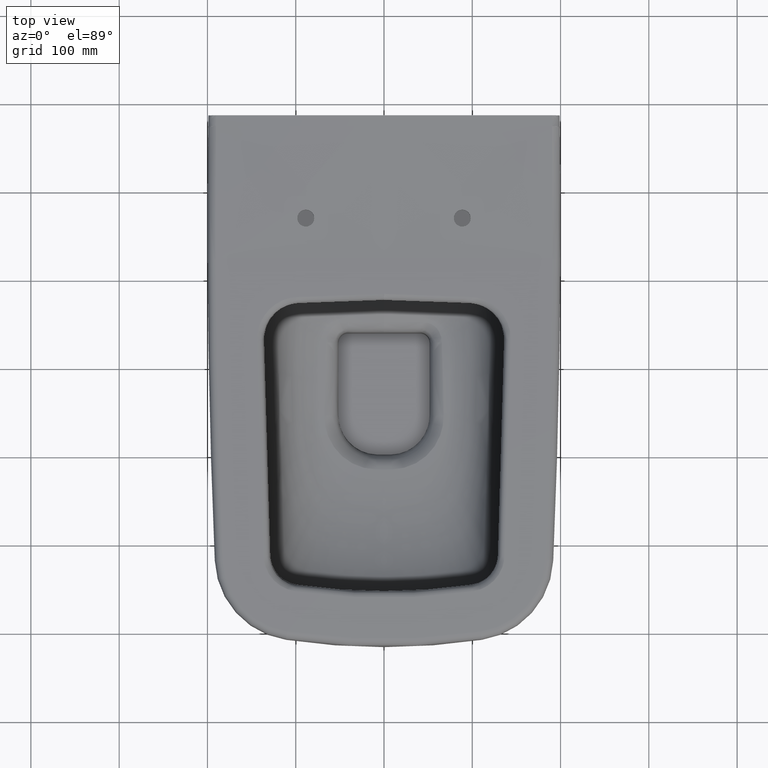
[diagram: clean part render]
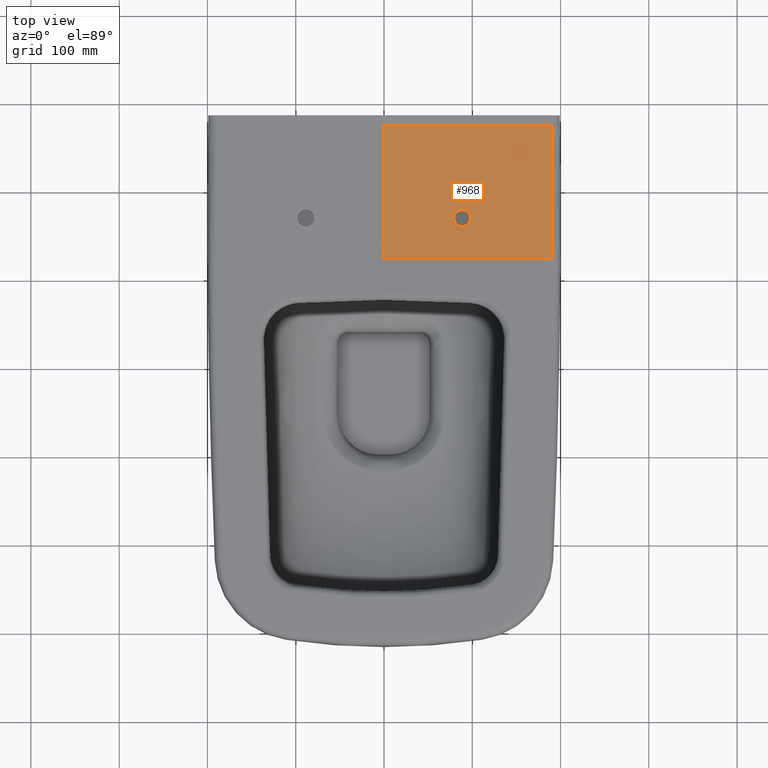
[diagram: same view with one face highlighted and labeled with its STEP entity id]
A machine part, top view. The second image highlights one B-rep face of the part: STEP entity #968.
In plain terms, the highlighted face is a freeform B-spline surface patch.
Its self-contained STEP definition (entity closure, byte-faithful):
#538=B_SPLINE_SURFACE_WITH_KNOTS('',3,3,((#73653,#73654,#73655,#73656,#73657,
#73658,#73659),(#73660,#73661,#73662,#73663,#73664,#73665,#73666),(#73667,
#73668,#73669,#73670,#73671,#73672,#73673),(#73674,#73675,#73676,#73677,
#73678,#73679,#73680),(#73681,#73682,#73683,#73684,#73685,#73686,#73687),
(#73688,#73689,#73690,#73691,#73692,#73693,#73694),(#73695,#73696,#73697,
#73698,#73699,#73700,#73701),(#73702,#73703,#73704,#73705,#73706,#73707,
#73708),(#73709,#73710,#73711,#73712,#73713,#73714,#73715),(#73716,#73717,
#73718,#73719,#73720,#73721,#73722),(#73723,#73724,#73725,#73726,#73727,
#73728,#73729),(#73730,#73731,#73732,#73733,#73734,#73735,#73736)),
 .UNSPECIFIED.,.F.,.F.,.F.,(4,1,1,1,1,1,1,1,1,4),(4,2,1,4),(0.,0.236774512525756,
0.473549025051511,0.591936281314389,0.710323537577267,0.828710793840145,
0.887904421971584,0.917501236037303,0.947098050103023,1.),(0.,0.0714966303316011,
0.990352018425019,1.),.UNSPECIFIED.);
#655=(
BOUNDED_CURVE()
B_SPLINE_CURVE(3,(#73649,#73650,#73651,#73652),.UNSPECIFIED.,.F.,.F.)
B_SPLINE_CURVE_WITH_KNOTS((4,4),(0.,1.),.UNSPECIFIED.)
CURVE()
GEOMETRIC_REPRESENTATION_ITEM()
RATIONAL_B_SPLINE_CURVE((0.999999993216164,0.999999993164763,0.99999999310504,
0.999999993043707))
REPRESENTATION_ITEM('')
);
#968=ADVANCED_FACE('',(#1032,#1033),#538,.F.);
#1032=FACE_BOUND('',#1286,.T.);
#1033=FACE_BOUND('',#1287,.T.);
#1286=EDGE_LOOP('',(#2507));
#1287=EDGE_LOOP('',(#2508,#2509,#2510,#2511,#2512));
#2507=ORIENTED_EDGE('',*,*,#3430,.F.);
#2508=ORIENTED_EDGE('',*,*,#3377,.F.);
#2509=ORIENTED_EDGE('',*,*,#3409,.F.);
#2510=ORIENTED_EDGE('',*,*,#3679,.F.);
#2511=ORIENTED_EDGE('',*,*,#3421,.F.);
#2512=ORIENTED_EDGE('',*,*,#3378,.F.);
#2853=VERTEX_POINT('',#37432);
#2854=VERTEX_POINT('',#37433);
#2855=VERTEX_POINT('',#37440);
#2870=VERTEX_POINT('',#38698);
#2878=VERTEX_POINT('',#41777);
#2885=VERTEX_POINT('',#42041);
#3377=EDGE_CURVE('',#2853,#2854,#3942,.T.);
#3378=EDGE_CURVE('',#2854,#2855,#3943,.T.);
#3409=EDGE_CURVE('',#2870,#2853,#3967,.T.);
#3421=EDGE_CURVE('',#2855,#2878,#3977,.T.);
#3430=EDGE_CURVE('',#2885,#2885,#3984,.T.);
#3679=EDGE_CURVE('',#2878,#2870,#655,.T.);
#3942=B_SPLINE_CURVE_WITH_KNOTS('',3,(#37428,#37429,#37430,#37431),
 .UNSPECIFIED.,.F.,.F.,(4,4),(0.,1.),.UNSPECIFIED.);
#3943=B_SPLINE_CURVE_WITH_KNOTS('',3,(#37434,#37435,#37436,#37437,#37438,
#37439),.UNSPECIFIED.,.F.,.F.,(4,2,4),(0.,0.568950576737245,1.),
 .UNSPECIFIED.);
#3967=B_SPLINE_CURVE_WITH_KNOTS('',3,(#38694,#38695,#38696,#38697),
 .UNSPECIFIED.,.F.,.F.,(4,4),(0.,1.),.UNSPECIFIED.);
#3977=B_SPLINE_CURVE_WITH_KNOTS('',3,(#41767,#41768,#41769,#41770,#41771,
#41772,#41773,#41774,#41775,#41776),.UNSPECIFIED.,.F.,.F.,(4,3,3,4),(0.,
0.400920549629792,0.700454338484179,1.),.UNSPECIFIED.);
#3984=B_SPLINE_CURVE_WITH_KNOTS('',3,(#42023,#42024,#42025,#42026,#42027,
#42028,#42029,#42030,#42031,#42032,#42033,#42034,#42035,#42036,#42037,#42038,
#42039,#42040),.UNSPECIFIED.,.T.,.F.,(2,2,2,2,2,2,2,2,2,2,2),(-0.125,0.,
0.125,0.25,0.375,0.5,0.625,0.75,0.875,1.,1.125),.UNSPECIFIED.);
#37428=CARTESIAN_POINT('',(-5.50756478379933E-10,-181.294382022472,4.22585763363305E-15));
#37429=CARTESIAN_POINT('',(-5.22261899281473E-10,-138.965212226002,1.08147437579593));
#37430=CARTESIAN_POINT('',(-4.62661619683451E-10,-96.6355557542345,2.14895942496482));
#37431=CARTESIAN_POINT('',(-4.64883626898158E-10,-54.3027235719797,3.07485239795502));
#37432=CARTESIAN_POINT('',(0.,-181.294382022472,0.));
#37433=CARTESIAN_POINT('',(-5.80090110482272E-11,-54.3027235719796,3.0748523979507));
#37434=CARTESIAN_POINT('',(-2.36862870118054E-6,-54.3027235719638,3.07485237280102));
#37435=CARTESIAN_POINT('',(-2.36810494872765E-6,-49.9030632384918,3.17108062743937));
#37436=CARTESIAN_POINT('',(-2.36753857302449E-6,-45.5033686026171,3.26577947677148));
#37437=CARTESIAN_POINT('',(-2.36646801913245E-6,-37.7703033120917,3.42928435899033));
#37438=CARTESIAN_POINT('',(-2.36600655749471E-6,-34.4369699785574,3.49976304417141));
#37439=CARTESIAN_POINT('',(-2.36554509585697E-6,-31.1036366450232,3.57024172935249));
#37440=CARTESIAN_POINT('',(-6.51354099676381E-11,-31.1036366450092,3.57024175827782));
#38694=CARTESIAN_POINT('',(190.831644285742,-181.294293820542,0.));
#38695=CARTESIAN_POINT('',(127.221096190447,-181.294323221185,0.));
#38696=CARTESIAN_POINT('',(63.6105480951518,-181.294352621829,0.));
#38697=CARTESIAN_POINT('',(-1.43289485146106E-10,-181.294382022472,0.));
#38698=CARTESIAN_POINT('',(190.862953445532,-181.294367293828,-0.000335239785720158));
#41767=CARTESIAN_POINT('',(-6.5135409967638E-11,-31.1036366450092,3.57024175827782));
#41768=CARTESIAN_POINT('',(25.4374037799418,-31.1036366450092,3.2592109056326));
#41769=CARTESIAN_POINT('',(50.87480417389,-31.1036366450092,2.94290633558905));
#41770=CARTESIAN_POINT('',(76.3112397361202,-31.1036366450092,2.5608106055421));
#41771=CARTESIAN_POINT('',(95.3151612960836,-31.1036366450092,2.27534146956807));
#41772=CARTESIAN_POINT('',(114.318626342613,-31.1036366450092,1.9531307346634));
#41773=CARTESIAN_POINT('',(133.32080930062,-31.1036366450092,1.5689821758333));
#41774=CARTESIAN_POINT('',(152.323690574951,-31.1036366450092,1.18481949982468));
#41775=CARTESIAN_POINT('',(171.325253622626,-31.1036366450092,0.729344607313483));
#41776=CARTESIAN_POINT('',(190.324794376443,-31.1036366450092,0.205389616870309));
#41777=CARTESIAN_POINT('',(190.324655173948,-31.1036366449633,0.200097986878431));
#42023=CARTESIAN_POINT('',(79.7939145389922,-131.334665604855,0.879578006653464));
#42024=CARTESIAN_POINT('',(78.7418676735419,-136.289847881895,0.798643768688045));
#42025=CARTESIAN_POINT('',(79.2439055770506,-138.928236861141,0.749612880761388));
#42026=CARTESIAN_POINT('',(81.9693263588546,-143.122627899761,0.664681580610798));
#42027=CARTESIAN_POINT('',(84.2020292862875,-144.65703874221,0.629291841497101));
#42028=CARTESIAN_POINT('',(89.0932941351193,-145.698608965801,0.591909817882115));
#42029=CARTESIAN_POINT('',(91.7392824861787,-145.220829427433,0.58931598329124));
#42030=CARTESIAN_POINT('',(95.9846863400063,-142.465660297757,0.61468878375143));
#42031=CARTESIAN_POINT('',(97.4988945448676,-140.24423342404,0.641938588594817));
#42032=CARTESIAN_POINT('',(98.5399044083224,-135.349615389365,0.711882135167199));
#42033=CARTESIAN_POINT('',(98.0465040560827,-132.68608792722,0.754969844599794));
#42034=CARTESIAN_POINT('',(95.3271027704972,-128.491432412505,0.836007741206276));
#42035=CARTESIAN_POINT('',(93.1171346792449,-126.956675942087,0.874057179751938));
#42036=CARTESIAN_POINT('',(88.1724978811394,-125.901271112044,0.921971395877837));
#42037=CARTESIAN_POINT('',(85.5284118692886,-126.399005159478,0.930536324556056));
#42038=CARTESIAN_POINT('',(81.3280036639808,-129.123346009763,0.909340937303729));
#42039=CARTESIAN_POINT('',(79.7939145389922,-131.334665604855,0.879578006653464));
#42040=CARTESIAN_POINT('',(78.7418676735419,-136.289847881895,0.798643768688045));
#42041=CARTESIAN_POINT('',(79.2678911062671,-133.812256743375,0.839110887670754));
#73649=CARTESIAN_POINT('',(190.324793440077,-31.1036366553481,0.205388543881269));
#73650=CARTESIAN_POINT('',(190.957615584721,-81.1641215540862,0.135507268853423));
#73651=CARTESIAN_POINT('',(191.146168761469,-131.230987822856,0.0691145133021668));
#73652=CARTESIAN_POINT('',(190.894413200771,-181.294382022212,-0.000557123208138409));
#73653=CARTESIAN_POINT('',(-6.55021635282896E-11,-30.1946181713791,3.58946168647024));
#73654=CARTESIAN_POINT('',(-6.40350421276773E-11,-33.8309576627947,3.51257635802454));
#73655=CARTESIAN_POINT('',(-6.2567920727065E-11,-37.4672971542103,3.43569102957884));
#73656=CARTESIAN_POINT('',(-4.22457512257598E-11,-87.8368899350084,2.37069621988898));
#73657=CARTESIAN_POINT('',(-1.12038993891064E-10,-135.056587472261,1.18151558796752));
#73658=CARTESIAN_POINT('',(-1.43956885534126E-10,-182.275679396529,-0.0250731966055603));
#73659=CARTESIAN_POINT('',(-1.44284494524251E-10,-182.766327986161,-0.0376125945287851));
#73660=CARTESIAN_POINT('',(15.8580548662966,-30.1947208231463,3.39457224589279));
#73661=CARTESIAN_POINT('',(15.8614198541442,-33.8310260972986,3.32159087484482));
#73662=CARTESIAN_POINT('',(15.8647848419918,-37.467331371451,3.24860950379686));
#73663=CARTESIAN_POINT('',(15.9113957450704,-87.8364501839579,2.2376912578662));
#73664=CARTESIAN_POINT('',(15.9230429655465,-135.05641773848,1.11506264784058));
#73665=CARTESIAN_POINT('',(15.9022104659821,-182.275664753655,-0.0236523515674379));
#73666=CARTESIAN_POINT('',(15.9019905276177,-182.766314942543,-0.0354863388620437));
#73667=CARTESIAN_POINT('',(47.5744713790209,-30.1949261266806,3.0006665883335));
#73668=CARTESIAN_POINT('',(47.5845589600894,-33.8311629663065,2.93559244040882));
#73669=CARTESIAN_POINT('',(47.5946465411579,-37.4673998059324,2.87051829248414));
#73670=CARTESIAN_POINT('',(47.7343769903533,-87.8355706818567,1.96912876621424));
#73671=CARTESIAN_POINT('',(47.7692227781782,-135.056078270918,0.980893884774915));
#73672=CARTESIAN_POINT('',(47.7066294058061,-182.275635467907,-0.0207838595083691));
#73673=CARTESIAN_POINT('',(47.7059685944994,-182.766288855304,-0.0311936245656841));
#73674=CARTESIAN_POINT('',(87.2188814995962,-30.1951816409384,2.42420077109567));
#73675=CARTESIAN_POINT('',(87.2373990461786,-33.8313333091263,2.37103474314707));
#73676=CARTESIAN_POINT('',(87.2559165927611,-37.4674849773141,2.31786871519846));
#73677=CARTESIAN_POINT('',(87.5124166480666,-87.8344760814762,1.58142725150516));
#73678=CARTESIAN_POINT('',(87.5766077007738,-135.055663541118,0.78747073998264));
#73679=CARTESIAN_POINT('',(87.4621602930881,-182.275613292782,-0.0166242262107954));
#73680=CARTESIAN_POINT('',(87.4609519968231,-182.766270728478,-0.0249805762162456));
#73681=CARTESIAN_POINT('',(118.932616801684,-30.1953902899535,1.8683285813094));
#73682=CARTESIAN_POINT('',(118.957921463162,-33.8314724084546,1.82696539822167));
#73683=CARTESIAN_POINT('',(118.98322612464,-37.4675545269558,1.78560221513395));
#73684=CARTESIAN_POINT('',(119.333739462878,-87.8335822476369,1.21265057154713));
#73685=CARTESIAN_POINT('',(119.421967004834,-135.055295259596,0.603678954845477));
#73686=CARTESIAN_POINT('',(119.266596646241,-182.275540710852,-0.0127875899886661));
#73687=CARTESIAN_POINT('',(119.264956183793,-182.766201194575,-0.0191940302303901));
#73688=CARTESIAN_POINT('',(142.716740064435,-30.1955639597907,1.39296267371614));
#73689=CARTESIAN_POINT('',(142.747163475712,-33.8315881883348,1.36187183062325));
#73690=CARTESIAN_POINT('',(142.777586886988,-37.4676124168789,1.33078098753036));
#73691=CARTESIAN_POINT('',(143.199003765318,-87.8328382615067,0.900119023899791));
#73692=CARTESIAN_POINT('',(143.3056276727,-135.05487105404,0.448329833980522));
#73693=CARTESIAN_POINT('',(143.119934099415,-182.275263896328,-0.00897163916740702));
#73694=CARTESIAN_POINT('',(143.117973346554,-182.765925893158,-0.0137239999468007));
#73695=CARTESIAN_POINT('',(162.535627365824,-30.1956221398913,0.939123729942959));
#73696=CARTESIAN_POINT('',(162.57034535712,-33.8316269750592,0.917919219401451));
#73697=CARTESIAN_POINT('',(162.605063348417,-37.4676318102271,0.896714708859943));
#73698=CARTESIAN_POINT('',(163.085967589593,-87.8325890230437,0.602995554305394));
#73699=CARTESIAN_POINT('',(163.208297833053,-135.055262942242,0.299412687873764));
#73700=CARTESIAN_POINT('',(162.997710945747,-182.276153253243,-0.00803025770000375));
#73701=CARTESIAN_POINT('',(162.995487191514,-182.76682040387,-0.0112252776486091));
#73702=CARTESIAN_POINT('',(176.408084657381,-30.1958032113754,0.585680860136743));
#73703=CARTESIAN_POINT('',(176.445827859847,-33.8317476893754,0.572416763668799));
#73704=CARTESIAN_POINT('',(176.483571062312,-37.4676921673753,0.559152667200855));
#73705=CARTESIAN_POINT('',(177.00637971176,-87.8318133289985,0.375421984388432));
#73706=CARTESIAN_POINT('',(177.139951204212,-135.054328496857,0.188829708002524));
#73707=CARTESIAN_POINT('',(176.91218581083,-182.274959495951,-0.000466104664957471));
#73708=CARTESIAN_POINT('',(176.909780520252,-182.765623941352,-0.00243334652894717));
#73709=CARTESIAN_POINT('',(184.334971337563,-30.1957271250322,0.373965813556429));
#73710=CARTESIAN_POINT('',(184.374447731311,-33.8316969651428,0.365160581526446));
#73711=CARTESIAN_POINT('',(184.41392412506,-37.4676668052534,0.356355349496463));
#73712=CARTESIAN_POINT('',(184.960740472178,-87.8321392759855,0.23438765293301));
#73713=CARTESIAN_POINT('',(185.100793964946,-135.055341006128,0.113627493220921));
#73714=CARTESIAN_POINT('',(184.863270711842,-182.276601104324,-0.00917532113813233));
#73715=CARTESIAN_POINT('',(184.860762293344,-182.767272080489,-0.0104515705921946));
#73716=CARTESIAN_POINT('',(191.840417879256,-30.1962777537049,0.162810421692132));
#73717=CARTESIAN_POINT('',(191.881543235902,-33.8320640509211,0.15962296359401));
#73718=CARTESIAN_POINT('',(191.922668592547,-37.4678503481372,0.156435505495888));
#73719=CARTESIAN_POINT('',(192.492325928469,-87.829780432254,0.112283696571755));
#73720=CARTESIAN_POINT('',(192.638619295746,-135.050936760682,0.0719847898840571));
#73721=CARTESIAN_POINT('',(192.39195912276,-182.270097047857,0.0302689876993094));
#73722=CARTESIAN_POINT('',(192.38935412067,-182.760746199292,0.0298353717772034));
#73723=CARTESIAN_POINT('',(197.364072194404,-30.1939894713354,0.0141455657703953));
#73724=CARTESIAN_POINT('',(197.406398681209,-33.8305385293388,0.01055324110356));
#73725=CARTESIAN_POINT('',(197.448725168013,-37.4670875873421,0.0069609164367248));
#73726=CARTESIAN_POINT('',(198.035020234576,-87.839583227929,-0.0427989948785052));
#73727=CARTESIAN_POINT('',(198.18574421607,-135.070894193049,-0.0828322876376675));
#73728=CARTESIAN_POINT('',(197.932197827915,-182.300169073406,-0.123821937152617));
#73729=CARTESIAN_POINT('',(197.929520062826,-182.790923320245,-0.124247958495558));
#73730=CARTESIAN_POINT('',(200.906062070046,-30.1918673316237,-0.0795469080085687));
#73731=CARTESIAN_POINT('',(200.949155748499,-33.8291237695293,-0.0845023597480904));
#73732=CARTESIAN_POINT('',(200.992249426952,-37.4663802074349,-0.0894578114876121));
#73733=CARTESIAN_POINT('',(201.589171425081,-87.8486742834262,-0.158099390953406));
#73734=CARTESIAN_POINT('',(201.742697200286,-135.089331373576,-0.212293261140657));
#73735=CARTESIAN_POINT('',(201.484695741469,-182.327926701248,-0.267148169751085));
#73736=CARTESIAN_POINT('',(201.481970908904,-182.818777793138,-0.267718232002772));